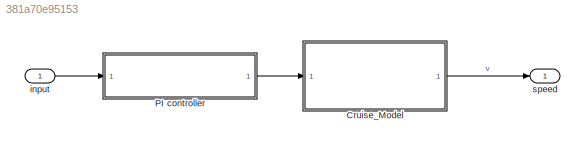
MODEL slx_381a70e95153
KIND model
CONFIG AbsTol = auto
CONFIG EnableMultiTasking = off
CONFIG FixedStep = auto
CONFIG MaxStep = auto
CONFIG MinStep = auto
CONFIG RelTol = 1e-3
CONFIG SampleTimeConstraint = Unconstrained
CONFIG SolverName = VariableStepAuto
CONFIG StartTime = 0.0
CONFIG StopTime = 10.0
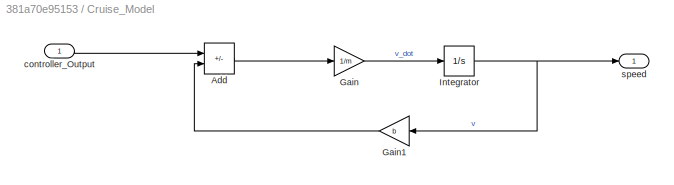
BLOCK [SubSystem] Cruise_Model
  Ports = [1, 1]
  RequestExecContextInheritance = off
BLOCK [Sum] Cruise_Model/Add
  IconShape = rectangular
  Inputs = +-
  Ports = [2, 1]
BLOCK [Gain] Cruise_Model/Gain
  Gain = 1/m
BLOCK [Gain] Cruise_Model/Gain1
  Gain = b
  NameLocation = top
BLOCK [Integrator] Cruise_Model/Integrator
  Ports = [1, 1]
BLOCK [Inport] Cruise_Model/controller_Output
BLOCK [Outport] Cruise_Model/speed
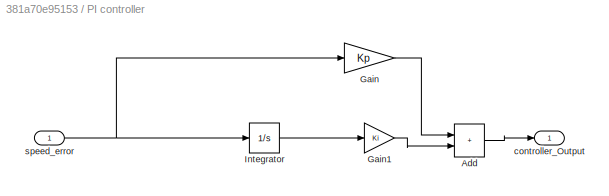
BLOCK [SubSystem] PI controller
  Ports = [1, 1]
  RequestExecContextInheritance = off
BLOCK [Sum] PI controller/Add
  IconShape = rectangular
  Ports = [2, 1]
BLOCK [Gain] PI controller/Gain
  Gain = Kp
BLOCK [Gain] PI controller/Gain1
  Gain = Ki
BLOCK [Integrator] PI controller/Integrator
  Ports = [1, 1]
BLOCK [Outport] PI controller/controller_Output
BLOCK [Inport] PI controller/speed_error
BLOCK [Inport] input
  OutDataTypeStr = double
  PortDimensions = 1
  SampleTime = 0
  SamplingMode = Sample based
  SignalType = real
BLOCK [Outport] speed
  OutDataTypeStr = double
  PortDimensions = 1
  SampleTime = 0
  SamplingMode = Sample based
  SignalType = real
LINE Cruise_Model/Add:1 -> Cruise_Model/Gain:1
LINE Cruise_Model/Gain1:1 -> Cruise_Model/Add:2
LINE Cruise_Model/Gain:1 -> Cruise_Model/Integrator:1
NET Cruise_Model/Integrator:1 -> Cruise_Model/Gain1:1, Cruise_Model/speed:1
LINE Cruise_Model/controller_Output:1 -> Cruise_Model/Add:1
LINE Cruise_Model:1 -> speed:1
LINE PI controller/Add:1 -> PI controller/controller_Output:1
LINE PI controller/Gain1:1 -> PI controller/Add:2
LINE PI controller/Gain:1 -> PI controller/Add:1
LINE PI controller/Integrator:1 -> PI controller/Gain1:1
NET PI controller/speed_error:1 -> PI controller/Gain:1, PI controller/Integrator:1
LINE PI controller:1 -> Cruise_Model:1
LINE input:1 -> PI controller:1
note: NET lines group one-source signal fan-out (src -> all destinations, sorted); 1:1 wires keep LINE
